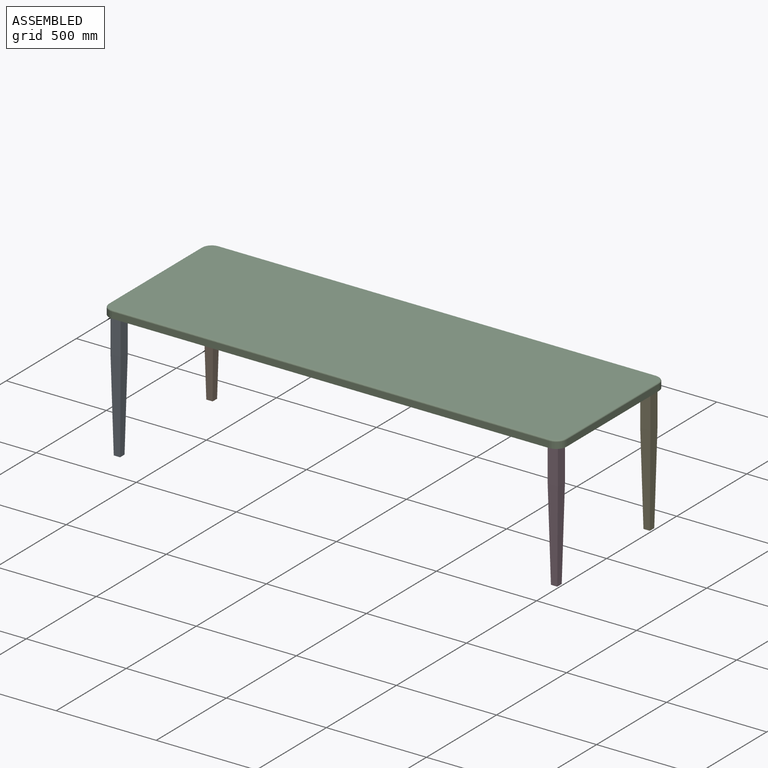
[diagram: assembled view]
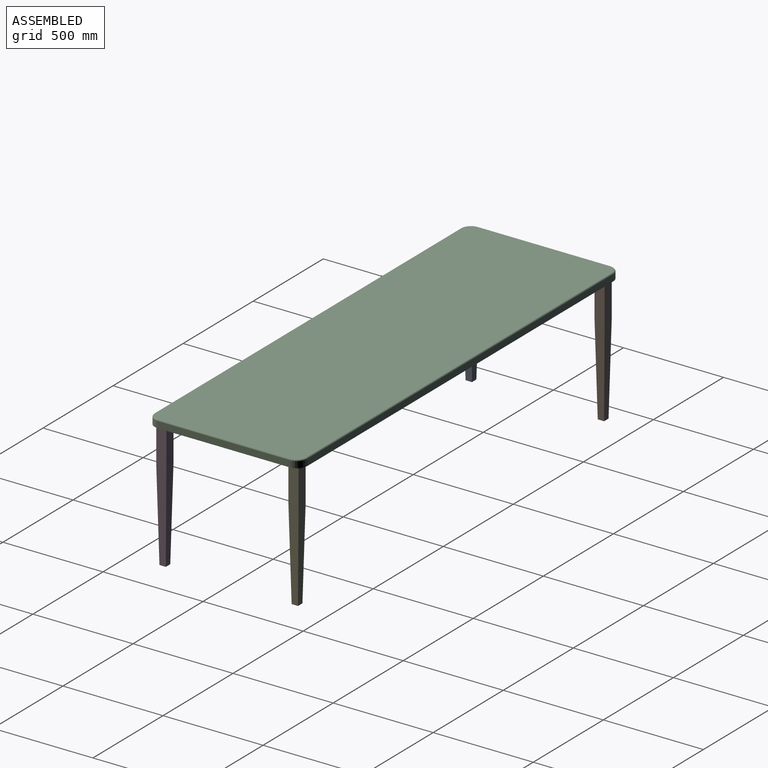
[diagram: assembled view, second angle]
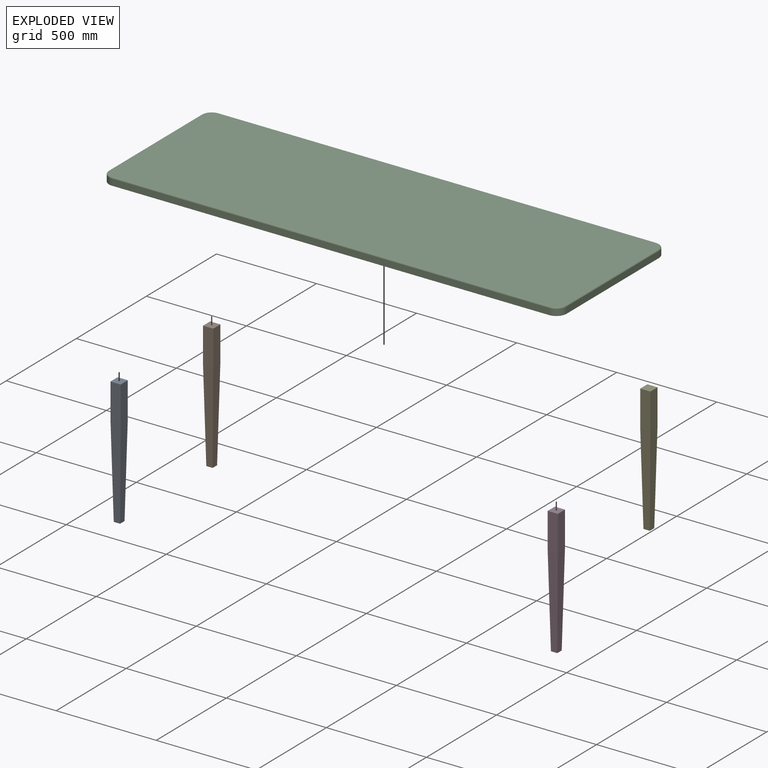
[diagram: exploded view]
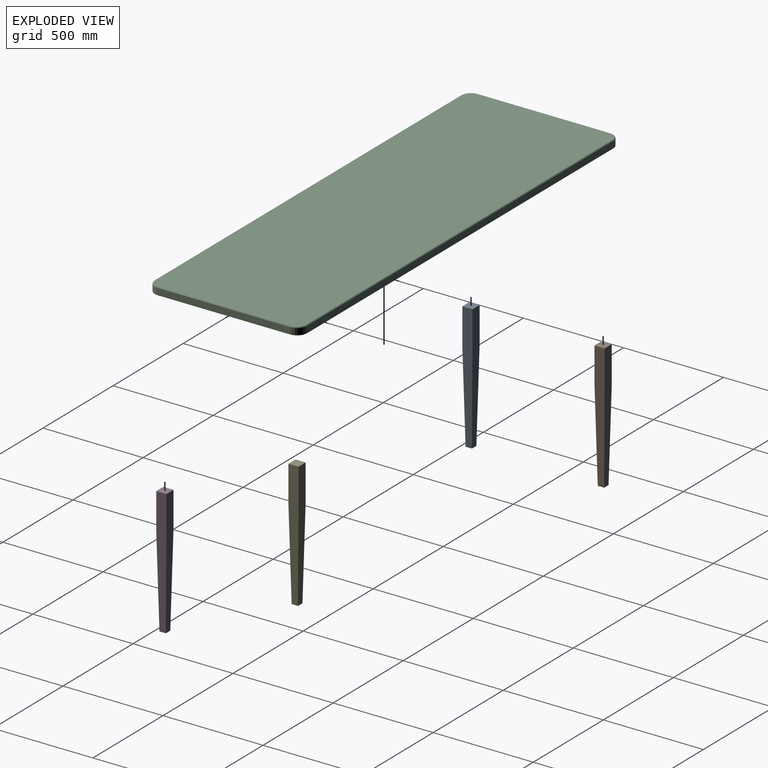
[diagram: exploded view, second angle]
ASSEMBLY  parts=5 mates=4
PART A: 10 faces, bbox 50.8x50.8x635 mm
  f0: plane 177.8x50.8mm, normal (0,1,0), area 9032.2mm2, adj f1,f2,f4,f9
  f1: plane 177.8x50.8mm, normal (-1,0,0), area 9032.2mm2, adj f0,f3,f4,f8
  f2: plane 177.8x50.8mm, normal (1,0,0), area 9032.2mm2, adj f0,f3,f4,f6
  f3: plane 177.8x50.8mm, normal (0,-1,0), area 9032.2mm2, adj f1,f2,f4,f7
  f4: plane 50.8x50.8mm, normal (0,0,1), area 2580.6mm2, adj f0,f1,f2,f3
  f5: plane 31.75x31.75mm, normal (0,0,-1), area 1008.1mm2, adj f6,f7,f8,f9
  f6: plane 457.2x50.8mm, normal (1,0,-0.02), area 18875mm2, adj f2,f5,f7,f9
  f7: plane 457.2x50.8mm, normal (0,-1,-0.02), area 18875mm2, adj f3,f5,f6,f8
  f8: plane 457.2x50.8mm, normal (-1,0,-0.02), area 18875mm2, adj f1,f5,f7,f9
  f9: plane 457.2x50.8mm, normal (0,1,-0.02), area 18875mm2, adj f0,f5,f6,f8
PART B: same geometry as A
PART C: 18 faces, bbox 2294.4x770.4x38.1 mm
  f0: plane 660.4x31.75mm, normal (1,0,0), area 20967.7mm2, adj f1,f7,f9,f13
  f1: cylinder r=50.8mm len=50.8mm, axis (0,0,-1), area 2533.5mm2, adj f0,f2,f9,f15
  f2: plane 2184.4x31.75mm, normal (0,1,0), area 69354.7mm2, adj f1,f3,f9,f17
  f3: cylinder r=50.8mm len=50.8mm, axis (0,0,-1), area 2533.5mm2, adj f2,f4,f9,f16
  f4: plane 660.4x31.75mm, normal (-1,0,0), area 20967.7mm2, adj f3,f5,f9,f14
  f5: cylinder r=50.8mm len=50.8mm, axis (0,0,-1), area 2533.5mm2, adj f4,f6,f9,f12
  f6: plane 2184.4x31.75mm, normal (0,-1,0), area 69354.7mm2, adj f5,f7,f9,f10
  f7: cylinder r=50.8mm len=50.8mm, axis (0,0,-1), area 2533.5mm2, adj f0,f6,f9,f11
  f8: plane 2273.3x749.3mm, normal (0,0,1), area 1701687.6mm2, adj f10,f11,f12,f13,f14,f15,f16,f17
  f9: plane 2286x762mm, normal (0,0,-1), area 1739716.8mm2, adj f0,f1,f2,f3,f4,f5,f6,f7
  f10: cylinder r=6.35mm len=2184.4mm, axis (-1,0,0), area 21788.4mm2, adj f6,f8,f11,f12
  f11: torus R=44.45mm, axis (0,0,1), area 759.8mm2, adj f7,f8,f10,f13
  f12: torus R=44.45mm, axis (0,0,1), area 759.8mm2, adj f5,f8,f10,f14
  f13: cylinder r=6.35mm len=660.4mm, axis (0,-1,0), area 6587.2mm2, adj f0,f8,f11,f15
  f14: cylinder r=6.35mm len=660.4mm, axis (0,1,0), area 6587.2mm2, adj f4,f8,f12,f16
  f15: torus R=44.45mm, axis (0,0,1), area 759.8mm2, adj f1,f8,f13,f17
  f16: torus R=44.45mm, axis (0,0,1), area 759.8mm2, adj f3,f8,f14,f17
  f17: cylinder r=6.35mm len=2184.4mm, axis (1,0,0), area 21788.4mm2, adj f2,f8,f15,f16
PART D: same geometry as A
PART E: same geometry as A
PLACE A t=(-1293.72,-417.02,-292.26)mm
PLACE B t=(-1293.72,243.38,-292.26)mm
PLACE C t=(-201.52,-86.82,25.24)mm
PLACE D t=(890.68,-417.02,-292.26)mm
PLACE E t=(890.68,243.38,-292.26)mm
MATE fastened A.f4 <-> C.f5  axis (0,0,1) through (-1293.72,-417.02,25.24)mm
MATE fastened B.f4 <-> C.f3  axis (0,0,1) through (-1293.72,243.38,25.24)mm
MATE fastened E.f4 <-> C.f1  axis (0,0,1) through (890.68,243.38,25.24)mm
MATE fastened D.f4 <-> C.f7  axis (0,0,1) through (890.68,-417.02,25.24)mm
